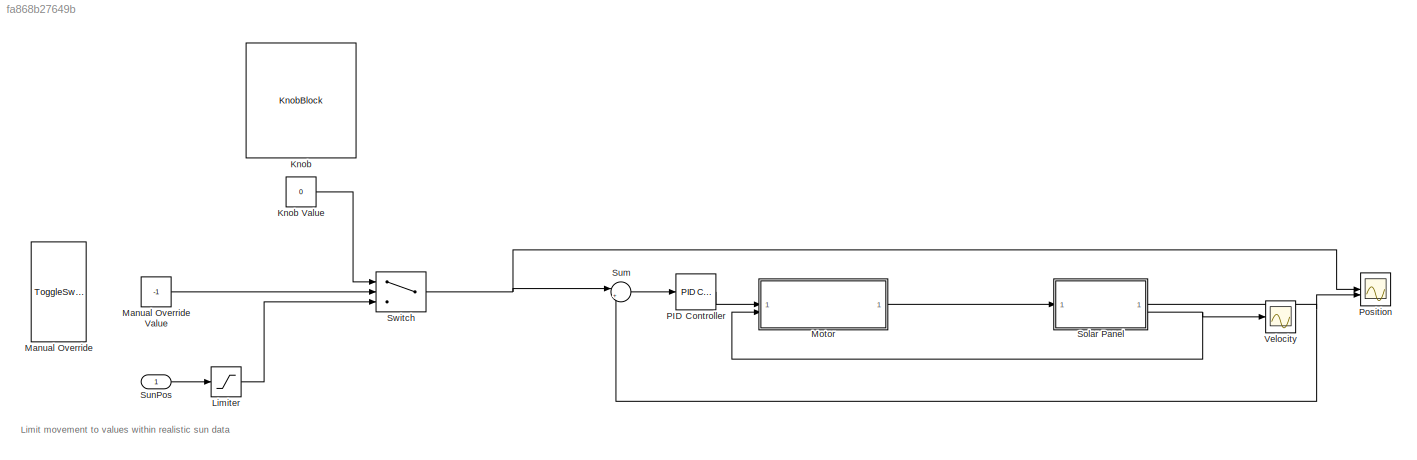
MODEL slx_fa868b27649b
KIND model
CONFIG AbsTol = auto
CONFIG EnableMultiTasking = off
CONFIG FixedStep = auto
CONFIG InitFcn = load("sunPositionData.mat")\n\n% Solar Panel\nm = 50;               % Mass, [kg]\nw = 1.04;             % Width, [m]\nl = 1.4;              % Length, [m]\nd = 0.1;              % Depth, [m]\nA = w*l;              % Area, [m^2]\nbeta = pi/4;          % Elevation angle, [rad]\nKd = 5;               % Damping constant, [N*m/(rad/s)]\nJ = m/12*(l^2*cos(beta)^2+d^2*sin(beta)^2+w^2);  % Inertia, [kg*m^2]\n\n% Motor...<+229ch>
CONFIG MaxStep = auto
CONFIG MinStep = auto
CONFIG RelTol = 1e-3
CONFIG SampleTimeConstraint = Unconstrained
CONFIG SolverName = VariableStepAuto
CONFIG StartTime = 0.0
CONFIG StopTime = 24*3600
BLOCK [KnobBlock] Knob
  ScaleMax = 6
BLOCK [Constant] Knob Value
  Value = 0
BLOCK [Saturate] Limiter
  LowerLimit = 1
  UpperLimit = 6
BLOCK [ToggleSwitchBlock] Manual Override
BLOCK [Constant] Manual Override Value
  Value = -1
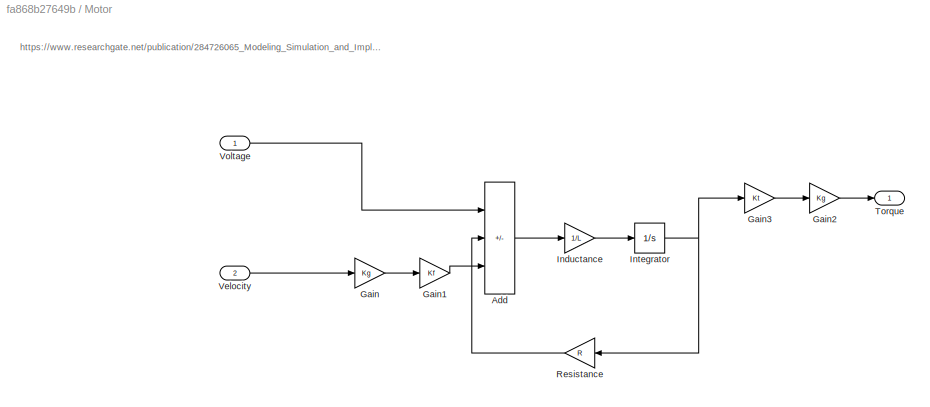
BLOCK [SubSystem] Motor
BLOCK [Sum] Motor/Add
  IconShape = rectangular
  Inputs = +--
BLOCK [Gain] Motor/Gain
  Gain = Kg
BLOCK [Gain] Motor/Gain1
  Gain = Kf
BLOCK [Gain] Motor/Gain2
  Gain = Kg
BLOCK [Gain] Motor/Gain3
  Gain = Kt
BLOCK [Gain] Motor/Inductance
  Gain = 1/L
BLOCK [Integrator] Motor/Integrator
BLOCK [Gain] Motor/Resistance
  Gain = R
BLOCK [Outport] Motor/Torque
BLOCK [Inport] Motor/Velocity
  Port = 2
BLOCK [Inport] Motor/Voltage
BLOCK [Reference] PID Controller  REF=slpidlib/PID Controller
  LibrarySourceBlock = simulink/Continuous/PID Controller
  SourceBlock = slpidlib/PID Controller
  SourceType = PID 1dof
BLOCK [Scope] Position
  Floating = off
  NumInputPorts = 2
  ScopeSpecificationString = Simulink.scopes.TimeScopeBlockCfg('CurrentConfiguration', extmgr.ConfigurationSet(extmgr.Configuration('Core','General UI',true),extmgr.Configuration('Core','Source UI',true),extmgr.Configuration('Sources','WiredSimulink',true),extmgr.Configuration('Visuals','Time Domain',true,'SerializedDisplays',{struct('MinYLimReal','-0.125','MaxYLimReal','5.26427','YLabelReal','','MinYLimMag','0.00000','MaxYLi...<+1603ch>
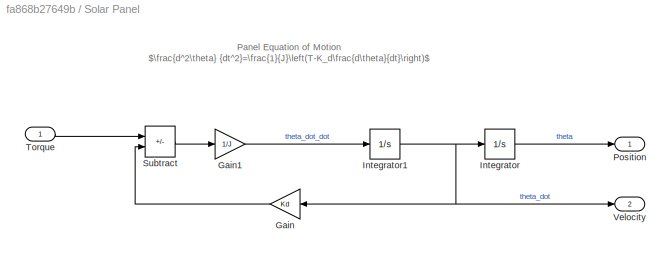
BLOCK [SubSystem] Solar Panel
BLOCK [Gain] Solar Panel/Gain
  Gain = Kd
  NameLocation = top
BLOCK [Gain] Solar Panel/Gain1
  Gain = 1/J
BLOCK [Integrator] Solar Panel/Integrator
BLOCK [Integrator] Solar Panel/Integrator1
BLOCK [Outport] Solar Panel/Position
BLOCK [Sum] Solar Panel/Subtract
  IconShape = rectangular
  Inputs = +-
BLOCK [Inport] Solar Panel/Torque
BLOCK [Outport] Solar Panel/Velocity
  Port = 2
BLOCK [Sum] Sum
  Inputs = |+-
BLOCK [Inport] SunPos
  Interpolate = off
BLOCK [Switch] Switch
  Criteria = u2 > Threshold
  InputSameDT = off
  SaturateOnIntegerOverflow = off
BLOCK [Scope] Velocity
  Floating = off
  NumInputPorts = 1
  ScopeSpecificationString = Simulink.scopes.TimeScopeBlockCfg('CurrentConfiguration', extmgr.ConfigurationSet(extmgr.Configuration('Core','General UI',true),extmgr.Configuration('Core','Source UI',true),extmgr.Configuration('Sources','WiredSimulink',true,'DataLoggingVariableName','ScopeData1'),extmgr.Configuration('Visuals','Time Domain',true,'SerializedDisplays',{struct('MinYLimReal','-0.07775','MaxYLimReal','0.05726','YLab...<+1468ch>
ANNOTATION (root): Limit movement to values within realistic sun data
ANNOTATION Motor: https://www.researchgate.net/publication/284726065_Modeling_Simulation_and_Implementation_of_Brushed_DC_Motor_Speed_Control_Using_Optical_Incremental_Encoder_Feedback
ANNOTATION Solar Panel: Panel Equation of Motion $\frac{d^2\theta} {dt^2}=\frac{1}{J}\left(T-K_d\frac{d\theta}{dt}\right)$
LINE Knob Value:1 -> Switch:1
LINE Limiter:1 -> Switch:3
LINE Manual Override Value:1 -> Switch:2
LINE Motor/Add:1 -> Motor/Inductance:1
LINE Motor/Gain1:1 -> Motor/Add:3
LINE Motor/Gain2:1 -> Motor/Torque:1
LINE Motor/Gain3:1 -> Motor/Gain2:1
LINE Motor/Gain:1 -> Motor/Gain1:1
LINE Motor/Inductance:1 -> Motor/Integrator:1
NET Motor/Integrator:1 -> Motor/Gain3:1, Motor/Resistance:1
LINE Motor/Resistance:1 -> Motor/Add:2
LINE Motor/Velocity:1 -> Motor/Gain:1
LINE Motor/Voltage:1 -> Motor/Add:1
LINE Motor:1 -> Solar Panel:1
LINE PID Controller:1 -> Motor:1
LINE Solar Panel/Gain1:1 -> Solar Panel/Integrator1:1
LINE Solar Panel/Gain:1 -> Solar Panel/Subtract:2
NET Solar Panel/Integrator1:1 -> Solar Panel/Gain:1, Solar Panel/Integrator:1, Solar Panel/Velocity:1
LINE Solar Panel/Integrator:1 -> Solar Panel/Position:1
LINE Solar Panel/Subtract:1 -> Solar Panel/Gain1:1
LINE Solar Panel/Torque:1 -> Solar Panel/Subtract:1
NET Solar Panel:1 -> Position:2, Sum:2
NET Solar Panel:2 -> Motor:2, Velocity:1
LINE Sum:1 -> PID Controller:1
LINE SunPos:1 -> Limiter:1
NET Switch:1 -> Position:1, Sum:1
note: NET lines group one-source signal fan-out (src -> all destinations, sorted); 1:1 wires keep LINE
